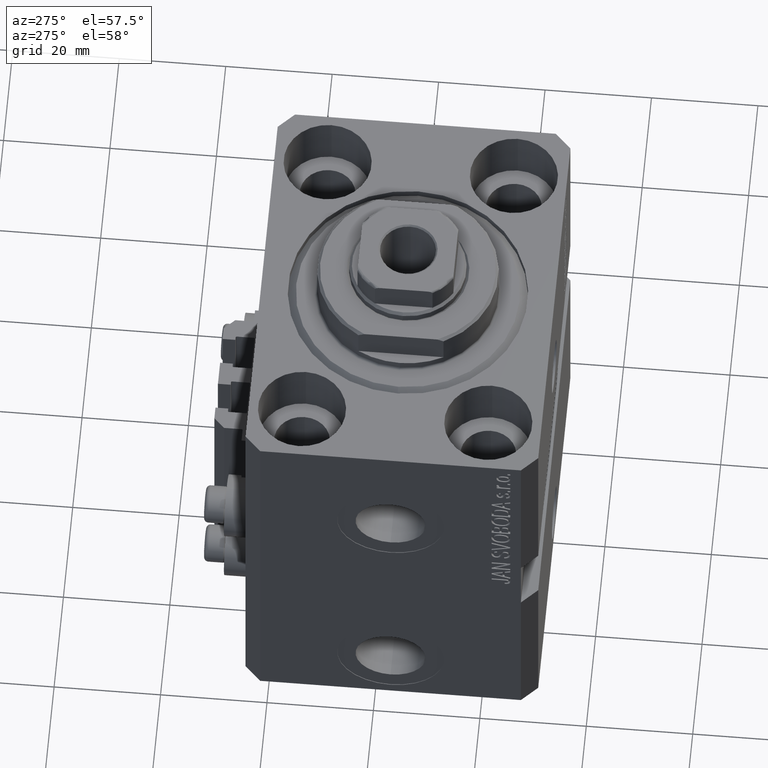
[diagram: clean part render]
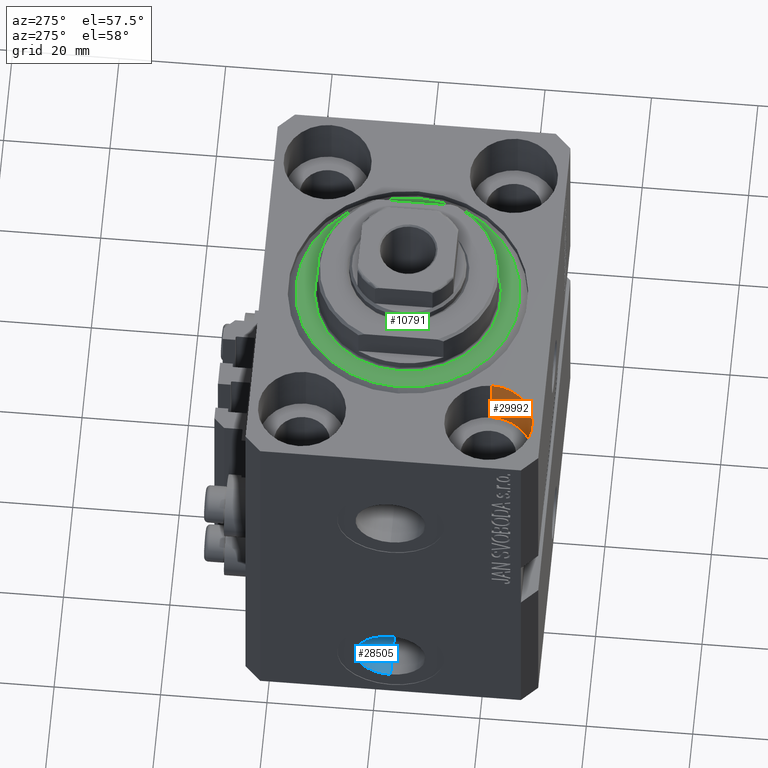
[diagram: same view with three faces highlighted in distinct colors, each labeled with its STEP entity id]
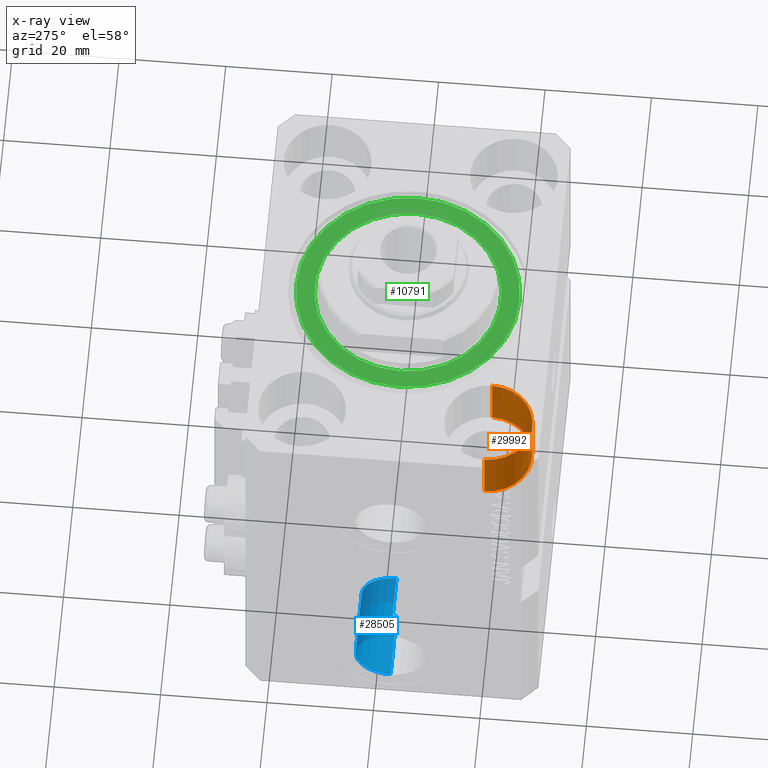
[diagram: x-ray of the same camera — body ghosted, the three highlighted faces saturated]
A machine part, auxiliary view with three faces highlighted in distinct colors.
The next image is the same camera in x-ray (body ghosted, the three faces saturated) — at least one of them is partly hidden behind the body in this view.
Their STEP definitions:

[orange] entity #29992 — the highlighted cylindrical surface (partial cylindrical patch) has radius 8.25 mm, axis along (0, 0, 1).
#421 = DIRECTION ( 'NONE',  ( 0.000000000000000000, 0.000000000000000000, 1.000000000000000000 ) ) ;
#1535 = VERTEX_POINT ( 'NONE', #34989 ) ;
#1966 = DIRECTION ( 'NONE',  ( -0.000000000000000000, -0.000000000000000000, 1.000000000000000000 ) ) ;
#3977 = DIRECTION ( 'NONE',  ( 1.000000000000000000, 0.000000000000000000, 0.000000000000000000 ) ) ;
#5481 = ORIENTED_EDGE ( 'NONE', *, *, #41607, .T. ) ;
#6076 = ORIENTED_EDGE ( 'NONE', *, *, #44706, .T. ) ;
#9512 = CARTESIAN_POINT ( 'NONE',  ( -19.25000000000000355, -17.50000000000000000, 0.000000000000000000 ) ) ;
#9867 = DIRECTION ( 'NONE',  ( -0.000000000000000000, -0.000000000000000000, 1.000000000000000000 ) ) ;
#11531 = CARTESIAN_POINT ( 'NONE',  ( -35.75000000000000711, -17.50000000000000000, -11.00000000000000000 ) ) ;
#12452 = AXIS2_PLACEMENT_3D ( 'NONE', #38967, #9867, #31614 ) ;
#13212 = EDGE_LOOP ( 'NONE', ( #23016, #6076, #5481, #14783 ) ) ;
#14783 = ORIENTED_EDGE ( 'NONE', *, *, #41173, .F. ) ;
#14811 = VERTEX_POINT ( 'NONE', #33414 ) ;
#16309 = AXIS2_PLACEMENT_3D ( 'NONE', #18406, #421, #3977 ) ;
#16508 = VECTOR ( 'NONE', #30932, 1000.000000000000000 ) ;
#16728 = FACE_OUTER_BOUND ( 'NONE', #13212, .T. ) ;
#18406 = CARTESIAN_POINT ( 'NONE',  ( -27.50000000000000355, -17.50000000000000000, -11.00000000000000000 ) ) ;
#18446 = VERTEX_POINT ( 'NONE', #11531 ) ;
#23016 = ORIENTED_EDGE ( 'NONE', *, *, #34872, .F. ) ;
#23249 = LINE ( 'NONE', #33908, #24801 ) ;
#24801 = VECTOR ( 'NONE', #1966, 1000.000000000000000 ) ;
#27616 = CARTESIAN_POINT ( 'NONE',  ( -19.25000000000000355, -17.50000000000000000, -11.00000000000000000 ) ) ;
#28249 = DIRECTION ( 'NONE',  ( 0.000000000000000000, 0.000000000000000000, 1.000000000000000000 ) ) ;
#28359 = CIRCLE ( 'NONE', #16309, 8.250000000000000000 ) ;
#29992 = ADVANCED_FACE ( 'NONE', ( #16728 ), #42504, .F. ) ;
#30932 = DIRECTION ( 'NONE',  ( -0.000000000000000000, -0.000000000000000000, 1.000000000000000000 ) ) ;
#31614 = DIRECTION ( 'NONE',  ( 1.000000000000000000, 0.000000000000000000, 0.000000000000000000 ) ) ;
#31806 = DIRECTION ( 'NONE',  ( 1.000000000000000000, 0.000000000000000000, 0.000000000000000000 ) ) ;
#32373 = AXIS2_PLACEMENT_3D ( 'NONE', #43573, #28249, #31806 ) ;
#33414 = CARTESIAN_POINT ( 'NONE',  ( -19.25000000000000355, -17.50000000000000000, -11.00000000000000000 ) ) ;
#33908 = CARTESIAN_POINT ( 'NONE',  ( -35.75000000000000711, -17.50000000000000000, -11.00000000000000000 ) ) ;
#34872 = EDGE_CURVE ( 'NONE', #18446, #14811, #28359, .T. ) ;
#34989 = CARTESIAN_POINT ( 'NONE',  ( -35.75000000000000711, -17.50000000000000000, 0.000000000000000000 ) ) ;
#38407 = CIRCLE ( 'NONE', #32373, 8.250000000000000000 ) ;
#38967 = CARTESIAN_POINT ( 'NONE',  ( -27.50000000000000355, -17.50000000000000000, -11.00000000000000000 ) ) ;
#39691 = VERTEX_POINT ( 'NONE', #9512 ) ;
#41173 = EDGE_CURVE ( 'NONE', #14811, #39691, #41359, .T. ) ;
#41359 = LINE ( 'NONE', #27616, #16508 ) ;
#41607 = EDGE_CURVE ( 'NONE', #1535, #39691, #38407, .T. ) ;
#42504 = CYLINDRICAL_SURFACE ( 'NONE', #12452, 8.250000000000000000 ) ;
#43573 = CARTESIAN_POINT ( 'NONE',  ( -27.50000000000000355, -17.50000000000000000, 0.000000000000000000 ) ) ;
#44706 = EDGE_CURVE ( 'NONE', #18446, #1535, #23249, .T. ) ;

[blue] entity #28505 — the highlighted cylindrical surface (edge-blend (fillet) strip) has radius 6.58 mm, axis along (-1, -0, -0).
#5210 = CARTESIAN_POINT ( 'NONE',  ( -37.39999999999999147, -7.521780640363043654E-15, -74.58000000000001251 ) ) ;
#7041 = CARTESIAN_POINT ( 'NONE',  ( -24.39999999999999147, -8.327598234202001119E-15, -61.42000000000000171 ) ) ;
#8514 = CARTESIAN_POINT ( 'NONE',  ( -24.39999999999999147, -7.521780640363043654E-15, -74.58000000000001251 ) ) ;
#9723 = AXIS2_PLACEMENT_3D ( 'NONE', #40784, #28960, #29430 ) ;
#9733 = CARTESIAN_POINT ( 'NONE',  ( -24.39999999999999147, -8.327598234202001119E-15, -68.00000000000000000 ) ) ;
#9857 = EDGE_LOOP ( 'NONE', ( #12505, #27416, #44223, #27931 ) ) ;
#10193 = DIRECTION ( 'NONE',  ( -1.000000000000000000, -0.000000000000000000, -0.000000000000000000 ) ) ;
#12398 = VERTEX_POINT ( 'NONE', #5210 ) ;
#12505 = ORIENTED_EDGE ( 'NONE', *, *, #22090, .F. ) ;
#13721 = EDGE_CURVE ( 'NONE', #15933, #12398, #38533, .T. ) ;
#14239 = CARTESIAN_POINT ( 'NONE',  ( -37.39999999999999147, -8.327598234202001119E-15, -68.00000000000000000 ) ) ;
#15933 = VERTEX_POINT ( 'NONE', #19664 ) ;
#19543 = CIRCLE ( 'NONE', #9723, 6.580000000000002736 ) ;
#19664 = CARTESIAN_POINT ( 'NONE',  ( -37.39999999999999147, -8.327598234202001119E-15, -61.42000000000000171 ) ) ;
#20378 = DIRECTION ( 'NONE',  ( -1.000000000000000000, -0.000000000000000000, -0.000000000000000000 ) ) ;
#21527 = LINE ( 'NONE', #43077, #33380 ) ;
#22090 = EDGE_CURVE ( 'NONE', #38675, #12398, #21527, .T. ) ;
#22971 = FACE_OUTER_BOUND ( 'NONE', #9857, .T. ) ;
#23851 = EDGE_CURVE ( 'NONE', #43344, #15933, #27069, .T. ) ;
#24143 = DIRECTION ( 'NONE',  ( 0.000000000000000000, 0.000000000000000000, 1.000000000000000000 ) ) ;
#27069 = LINE ( 'NONE', #37742, #34169 ) ;
#27416 = ORIENTED_EDGE ( 'NONE', *, *, #42881, .F. ) ;
#27931 = ORIENTED_EDGE ( 'NONE', *, *, #13721, .T. ) ;
#27940 = AXIS2_PLACEMENT_3D ( 'NONE', #14239, #32445, #46436 ) ;
#28505 = ADVANCED_FACE ( 'NONE', ( #22971 ), #37421, .F. ) ;
#28960 = DIRECTION ( 'NONE',  ( -1.000000000000000000, 0.000000000000000000, 0.000000000000000000 ) ) ;
#29430 = DIRECTION ( 'NONE',  ( 0.000000000000000000, 0.000000000000000000, 1.000000000000000000 ) ) ;
#32445 = DIRECTION ( 'NONE',  ( -1.000000000000000000, 0.000000000000000000, 0.000000000000000000 ) ) ;
#33380 = VECTOR ( 'NONE', #10193, 1000.000000000000000 ) ;
#34169 = VECTOR ( 'NONE', #45318, 1000.000000000000000 ) ;
#37421 = CYLINDRICAL_SURFACE ( 'NONE', #43403, 6.580000000000002736 ) ;
#37742 = CARTESIAN_POINT ( 'NONE',  ( -24.39999999999999147, -8.327598234202001119E-15, -61.42000000000000171 ) ) ;
#38533 = CIRCLE ( 'NONE', #27940, 6.580000000000002736 ) ;
#38675 = VERTEX_POINT ( 'NONE', #8514 ) ;
#40784 = CARTESIAN_POINT ( 'NONE',  ( -24.39999999999999147, -8.327598234202001119E-15, -68.00000000000000000 ) ) ;
#42881 = EDGE_CURVE ( 'NONE', #43344, #38675, #19543, .T. ) ;
#43077 = CARTESIAN_POINT ( 'NONE',  ( -24.39999999999999147, -7.521780640363043654E-15, -74.58000000000001251 ) ) ;
#43344 = VERTEX_POINT ( 'NONE', #7041 ) ;
#43403 = AXIS2_PLACEMENT_3D ( 'NONE', #9733, #20378, #24143 ) ;
#44223 = ORIENTED_EDGE ( 'NONE', *, *, #23851, .T. ) ;
#45318 = DIRECTION ( 'NONE',  ( -1.000000000000000000, -0.000000000000000000, -0.000000000000000000 ) ) ;
#46436 = DIRECTION ( 'NONE',  ( 0.000000000000000000, 0.000000000000000000, 1.000000000000000000 ) ) ;

[green] entity #10791 — the highlighted planar face has unit normal (0, 0, -1).
#1167 = CARTESIAN_POINT ( 'NONE',  ( 0.000000000000000000, 0.000000000000000000, 0.000000000000000000 ) ) ;
#4005 = DIRECTION ( 'NONE',  ( 1.000000000000000000, 0.000000000000000000, -0.000000000000000000 ) ) ;
#5167 = DIRECTION ( 'NONE',  ( 1.000000000000000000, 0.000000000000000000, 0.000000000000000000 ) ) ;
#6051 = AXIS2_PLACEMENT_3D ( 'NONE', #1167, #15603, #8508 ) ;
#7506 = CARTESIAN_POINT ( 'NONE',  ( 0.000000000000000000, 0.000000000000000000, 0.000000000000000000 ) ) ;
#8508 = DIRECTION ( 'NONE',  ( 1.000000000000000000, 0.000000000000000000, 0.000000000000000000 ) ) ;
#8593 = CARTESIAN_POINT ( 'NONE',  ( -17.50000000000000000, 2.143131898507868643E-15, -2.168404344971008868E-16 ) ) ;
#8713 = EDGE_LOOP ( 'NONE', ( #20239, #9639 ) ) ;
#9496 = DIRECTION ( 'NONE',  ( 1.000000000000000000, 0.000000000000000000, 0.000000000000000000 ) ) ;
#9639 = ORIENTED_EDGE ( 'NONE', *, *, #45363, .T. ) ;
#10791 = ADVANCED_FACE ( 'NONE', ( #29543, #15341 ), #39982, .F. ) ;
#11501 = DIRECTION ( 'NONE',  ( 1.000000000000000000, 0.000000000000000000, 0.000000000000000000 ) ) ;
#12760 = AXIS2_PLACEMENT_3D ( 'NONE', #7506, #15514, #11501 ) ;
#13496 = AXIS2_PLACEMENT_3D ( 'NONE', #30249, #37585, #5167 ) ;
#15341 = FACE_OUTER_BOUND ( 'NONE', #8713, .T. ) ;
#15514 = DIRECTION ( 'NONE',  ( -0.000000000000000000, -0.000000000000000000, -1.000000000000000000 ) ) ;
#15603 = DIRECTION ( 'NONE',  ( 0.000000000000000000, 0.000000000000000000, 1.000000000000000000 ) ) ;
#18357 = EDGE_CURVE ( 'NONE', #44654, #42465, #24914, .T. ) ;
#19041 = CARTESIAN_POINT ( 'NONE',  ( 20.99999999999998934, 0.000000000000000000, 0.000000000000000000 ) ) ;
#20144 = DIRECTION ( 'NONE',  ( 0.000000000000000000, 0.000000000000000000, 1.000000000000000000 ) ) ;
#20239 = ORIENTED_EDGE ( 'NONE', *, *, #42603, .T. ) ;
#22425 = CARTESIAN_POINT ( 'NONE',  ( -20.99999999999998934, 2.663606788145492628E-15, 0.000000000000000000 ) ) ;
#22902 = CARTESIAN_POINT ( 'NONE',  ( 0.000000000000000000, 0.000000000000000000, 0.000000000000000000 ) ) ;
#24914 = CIRCLE ( 'NONE', #6051, 17.50000000000000000 ) ;
#25986 = DIRECTION ( 'NONE',  ( 0.000000000000000000, 0.000000000000000000, 1.000000000000000000 ) ) ;
#26917 = CARTESIAN_POINT ( 'NONE',  ( 17.50000000000000000, 0.000000000000000000, -2.168404344971008868E-16 ) ) ;
#27329 = EDGE_CURVE ( 'NONE', #42465, #44654, #35916, .T. ) ;
#29543 = FACE_BOUND ( 'NONE', #35614, .T. ) ;
#30249 = CARTESIAN_POINT ( 'NONE',  ( 0.000000000000000000, 0.000000000000000000, 0.000000000000000000 ) ) ;
#30885 = CIRCLE ( 'NONE', #12760, 20.99999999999998934 ) ;
#32900 = AXIS2_PLACEMENT_3D ( 'NONE', #38135, #20144, #9496 ) ;
#35186 = VERTEX_POINT ( 'NONE', #19041 ) ;
#35614 = EDGE_LOOP ( 'NONE', ( #40783, #36769 ) ) ;
#35916 = CIRCLE ( 'NONE', #32900, 17.50000000000000000 ) ;
#36769 = ORIENTED_EDGE ( 'NONE', *, *, #18357, .T. ) ;
#37585 = DIRECTION ( 'NONE',  ( -0.000000000000000000, -0.000000000000000000, -1.000000000000000000 ) ) ;
#37685 = CIRCLE ( 'NONE', #13496, 20.99999999999998934 ) ;
#38135 = CARTESIAN_POINT ( 'NONE',  ( 0.000000000000000000, 0.000000000000000000, 0.000000000000000000 ) ) ;
#39935 = AXIS2_PLACEMENT_3D ( 'NONE', #22902, #25986, #4005 ) ;
#39982 = PLANE ( 'NONE',  #39935 ) ;
#40783 = ORIENTED_EDGE ( 'NONE', *, *, #27329, .T. ) ;
#40959 = VERTEX_POINT ( 'NONE', #22425 ) ;
#42465 = VERTEX_POINT ( 'NONE', #26917 ) ;
#42603 = EDGE_CURVE ( 'NONE', #35186, #40959, #30885, .T. ) ;
#44654 = VERTEX_POINT ( 'NONE', #8593 ) ;
#45363 = EDGE_CURVE ( 'NONE', #40959, #35186, #37685, .T. ) ;